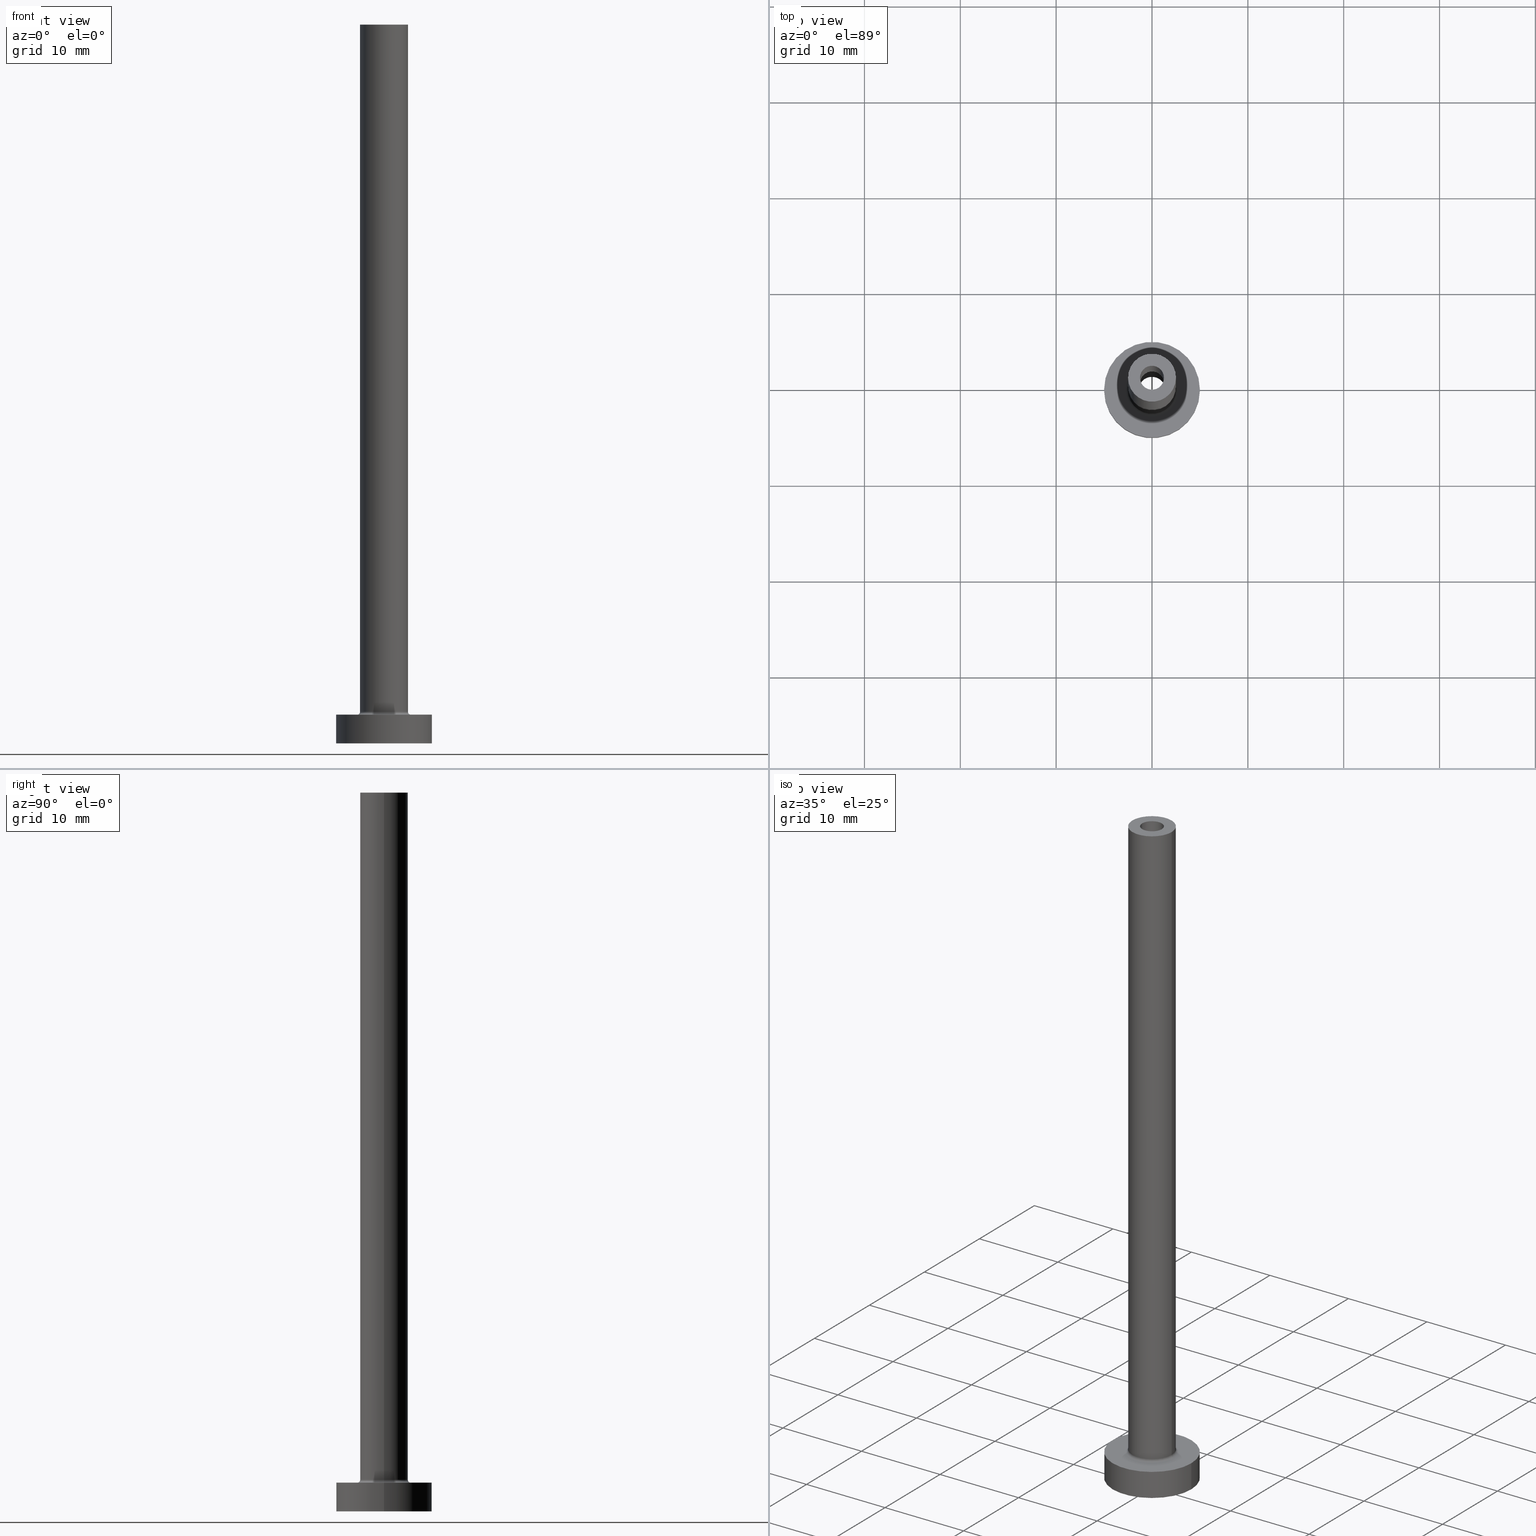
[diagram: canonical four-view strip — front | top / right | iso, engineering-drawing reading convention]
A machine part, canonical four-view strip (front | top / right | iso — engineering-drawing reading convention). The complete STEP part file that produces these views, byte-faithful:
ISO-10303-21;
HEADER;
FILE_DESCRIPTION (( 'STEP AP203' ),
    '1' );
FILE_NAME ('fc75.STEP',
    '2023-02-13T12:49:25',
    ( '' ),
    ( '' ),
    'SwSTEP 2.0',
    'SolidWorks 2019',
    '' );
FILE_SCHEMA (( 'CONFIG_CONTROL_DESIGN' ));
ENDSEC;

DATA;
#1 = VERTEX_POINT ( 'NONE', #406 ) ;
#2 = DIRECTION ( 'NONE',  ( 1.000000000000000000, 0.000000000000000000, 0.000000000000000000 ) ) ;
#3 = ORIENTED_EDGE ( 'NONE', *, *, #374, .T. ) ;
#4 = DATE_AND_TIME ( #183, #81 ) ;
#5 = PERSON_AND_ORGANIZATION ( #98, #35 ) ;
#6 = DATE_TIME_ROLE ( 'creation_date' ) ;
#7 = AXIS2_PLACEMENT_3D ( 'NONE', #273, #248, #170 ) ;
#8 = CIRCLE ( 'NONE', #69, 2.500000000000000000 ) ;
#9 = FACE_BOUND ( 'NONE', #258, .T. ) ;
#10 = DIRECTION ( 'NONE',  ( 0.000000000000000000, 0.000000000000000000, 1.000000000000000000 ) ) ;
#11 = DIRECTION ( 'NONE',  ( 1.000000000000000000, 0.000000000000000000, 0.000000000000000000 ) ) ;
#12 = LINE ( 'NONE', #42, #94 ) ;
#13 = PRODUCT_RELATED_PRODUCT_CATEGORY ( 'detail', '', ( #86 ) ) ;
#14 = CYLINDRICAL_SURFACE ( 'NONE', #196, 1.250000000000000000 ) ;
#15 =( GEOMETRIC_REPRESENTATION_CONTEXT ( 3 ) GLOBAL_UNCERTAINTY_ASSIGNED_CONTEXT ( ( #328 ) ) GLOBAL_UNIT_ASSIGNED_CONTEXT ( ( #339, #60, #208 ) ) REPRESENTATION_CONTEXT ( 'NONE', 'WORKASPACE' ) );
#16 = LINE ( 'NONE', #334, #386 ) ;
#17 = EDGE_CURVE ( 'NONE', #378, #149, #241, .T. ) ;
#18 = CARTESIAN_POINT ( 'NONE',  ( -5.000000000000000000, 0.000000000000000000, 3.000000000000000000 ) ) ;
#19 = CARTESIAN_POINT ( 'NONE',  ( 0.000000000000000000, 0.000000000000000000, 3.000000000000000000 ) ) ;
#20 = DIRECTION ( 'NONE',  ( -0.000000000000000000, -0.000000000000000000, -1.000000000000000000 ) ) ;
#21 = CARTESIAN_POINT ( 'NONE',  ( 0.000000000000000000, 0.000000000000000000, 75.00000000000001421 ) ) ;
#22 = AXIS2_PLACEMENT_3D ( 'NONE', #292, #404, #409 ) ;
#23 = DIRECTION ( 'NONE',  ( 1.000000000000000000, 0.000000000000000000, 0.000000000000000000 ) ) ;
#24 = DIRECTION ( 'NONE',  ( 1.000000000000000000, 0.000000000000000000, 0.000000000000000000 ) ) ;
#25 = EDGE_CURVE ( 'NONE', #261, #430, #199, .T. ) ;
#26 = CARTESIAN_POINT ( 'NONE',  ( 0.000000000000000000, 0.000000000000000000, 75.00000000000001421 ) ) ;
#27 = DIRECTION ( 'NONE',  ( -0.000000000000000000, -0.000000000000000000, -1.000000000000000000 ) ) ;
#28 = DIRECTION ( 'NONE',  ( 0.000000000000000000, 0.000000000000000000, -1.000000000000000000 ) ) ;
#29 = AXIS2_PLACEMENT_3D ( 'NONE', #198, #54, #201 ) ;
#30 = CC_DESIGN_PERSON_AND_ORGANIZATION_ASSIGNMENT ( #115, #395, ( #203 ) ) ;
#31 = DIRECTION ( 'NONE',  ( 1.000000000000000000, 0.000000000000000000, 0.000000000000000000 ) ) ;
#32 = EDGE_LOOP ( 'NONE', ( #114, #422, #271, #72 ) ) ;
#33 = ORIENTED_EDGE ( 'NONE', *, *, #257, .F. ) ;
#34 = ORIENTED_EDGE ( 'NONE', *, *, #236, .F. ) ;
#35 = ORGANIZATION ( 'NEUR�EN�', 'NEUR�EN�', '' ) ;
#36 = DIRECTION ( 'NONE',  ( -1.000000000000000000, 0.000000000000000000, 0.000000000000000000 ) ) ;
#37 = CALENDAR_DATE ( 2023, 13, 2 ) ;
#38 = AXIS2_PLACEMENT_3D ( 'NONE', #414, #449, #23 ) ;
#39 = DIRECTION ( 'NONE',  ( -1.000000000000000000, 0.000000000000000000, 0.000000000000000000 ) ) ;
#40 = EDGE_CURVE ( 'NONE', #310, #149, #376, .T. ) ;
#41 = ORIENTED_EDGE ( 'NONE', *, *, #298, .F. ) ;
#42 = CARTESIAN_POINT ( 'NONE',  ( 1.399999999999999911, 1.714505518806294391E-16, 43.95979797464467964 ) ) ;
#43 = DATE_AND_TIME ( #37, #371 ) ;
#44 = CC_DESIGN_PERSON_AND_ORGANIZATION_ASSIGNMENT ( #417, #135, ( #265 ) ) ;
#45 = ORIENTED_EDGE ( 'NONE', *, *, #367, .T. ) ;
#46 = CARTESIAN_POINT ( 'NONE',  ( 0.000000000000000000, 0.000000000000000000, 75.00000000000001421 ) ) ;
#47 = CARTESIAN_POINT ( 'NONE',  ( 0.000000000000000000, 0.000000000000000000, 75.00000000000001421 ) ) ;
#48 = DIRECTION ( 'NONE',  ( 1.000000000000000000, 0.000000000000000000, 0.000000000000000000 ) ) ;
#49 = DIRECTION ( 'NONE',  ( 0.000000000000000000, 0.000000000000000000, -1.000000000000000000 ) ) ;
#50 = DIRECTION ( 'NONE',  ( -1.000000000000000000, 0.000000000000000000, 0.000000000000000000 ) ) ;
#51 = AXIS2_PLACEMENT_3D ( 'NONE', #385, #141, #24 ) ;
#52 = AXIS2_PLACEMENT_3D ( 'NONE', #297, #444, #128 ) ;
#53 = AXIS2_PLACEMENT_3D ( 'NONE', #375, #280, #172 ) ;
#54 = DIRECTION ( 'NONE',  ( 0.000000000000000000, 0.000000000000000000, 1.000000000000000000 ) ) ;
#55 = ADVANCED_FACE ( 'NONE', ( #246 ), #240, .T. ) ;
#56 = DIRECTION ( 'NONE',  ( 1.000000000000000000, 0.000000000000000000, -0.000000000000000000 ) ) ;
#57 = PLANE ( 'NONE',  #29 ) ;
#58 = ORIENTED_EDGE ( 'NONE', *, *, #40, .F. ) ;
#59 = APPLICATION_PROTOCOL_DEFINITION ( 'international standard', 'config_control_design', 1994, #189 ) ;
#60 =( NAMED_UNIT ( * ) PLANE_ANGLE_UNIT ( ) SI_UNIT ( $, .RADIAN. ) );
#61 = ORIENTED_EDGE ( 'NONE', *, *, #245, .F. ) ;
#62 = CARTESIAN_POINT ( 'NONE',  ( 0.000000000000000000, 0.000000000000000000, 0.000000000000000000 ) ) ;
#63 = CARTESIAN_POINT ( 'NONE',  ( 1.399999999999999911, 1.714505518806294391E-16, 40.00000000000000711 ) ) ;
#64 = DIRECTION ( 'NONE',  ( 1.000000000000000000, 0.000000000000000000, 0.000000000000000000 ) ) ;
#65 = PERSON_AND_ORGANIZATION_ROLE ( 'design_supplier' ) ;
#66 = ADVANCED_FACE ( 'NONE', ( #324 ), #14, .F. ) ;
#67 = AXIS2_PLACEMENT_3D ( 'NONE', #186, #438, #31 ) ;
#68 = ORIENTED_EDGE ( 'NONE', *, *, #147, .T. ) ;
#69 = AXIS2_PLACEMENT_3D ( 'NONE', #90, #327, #11 ) ;
#70 = CARTESIAN_POINT ( 'NONE',  ( 0.000000000000000000, 0.000000000000000000, 3.299999999999997158 ) ) ;
#71 = COORDINATED_UNIVERSAL_TIME_OFFSET ( 1, 0, .AHEAD. ) ;
#72 = ORIENTED_EDGE ( 'NONE', *, *, #402, .T. ) ;
#73 = ORIENTED_EDGE ( 'NONE', *, *, #238, .F. ) ;
#74 = CYLINDRICAL_SURFACE ( 'NONE', #282, 2.500000000000000000 ) ;
#75 = ORIENTED_EDGE ( 'NONE', *, *, #420, .F. ) ;
#76 = DIRECTION ( 'NONE',  ( -1.000000000000000000, 0.000000000000000000, 0.000000000000000000 ) ) ;
#77 = DIRECTION ( 'NONE',  ( 1.000000000000000000, 0.000000000000000000, 0.000000000000000000 ) ) ;
#78 = VERTEX_POINT ( 'NONE', #424 ) ;
#79 = CIRCLE ( 'NONE', #7, 2.500000000000000000 ) ;
#80 = CALENDAR_DATE ( 2023, 13, 2 ) ;
#81 = LOCAL_TIME ( 13, 49, 25.00000000000000000, #112 ) ;
#82 = EDGE_LOOP ( 'NONE', ( #58, #41 ) ) ;
#83 = CARTESIAN_POINT ( 'NONE',  ( -2.799999999999999822, 3.429011037612589276E-16, 2.999999999999998668 ) ) ;
#84 = MANIFOLD_SOLID_BREP ( 'Odebrat vysunut�m4', #227 ) ;
#85 = DIRECTION ( 'NONE',  ( -0.000000000000000000, -0.000000000000000000, -1.000000000000000000 ) ) ;
#86 = PRODUCT ( 'fc75', 'fc75', '', ( #301 ) ) ;
#87 = EDGE_LOOP ( 'NONE', ( #286, #388, #383, #249 ) ) ;
#88 = CARTESIAN_POINT ( 'NONE',  ( -1.399999999999999911, 0.000000000000000000, 43.95979797464467964 ) ) ;
#89 = EDGE_LOOP ( 'NONE', ( #226, #340, #357, #111 ) ) ;
#90 = CARTESIAN_POINT ( 'NONE',  ( 0.000000000000000000, 0.000000000000000000, 3.299999999999997158 ) ) ;
#91 = CIRCLE ( 'NONE', #317, 2.500000000000000000 ) ;
#92 = CARTESIAN_POINT ( 'NONE',  ( -1.250000000000000000, 0.000000000000000000, 40.00000000000000711 ) ) ;
#93 = EDGE_CURVE ( 'NONE', #261, #107, #140, .T. ) ;
#94 = VECTOR ( 'NONE', #320, 1000.000000000000000 ) ;
#95 = PERSON_AND_ORGANIZATION ( #98, #35 ) ;
#96 = CIRCLE ( 'NONE', #160, 2.799999999999999822 ) ;
#97 = ORIENTED_EDGE ( 'NONE', *, *, #217, .F. ) ;
#98 = PERSON ( 'NEUR�EN�', 'NEUR�EN�', 'NEUR�EN�', ('NEUR�EN�'), ('NEUR�EN�'), ('NEUR�EN�') ) ;
#99 = EDGE_LOOP ( 'NONE', ( #274, #33 ) ) ;
#100 = AXIS2_PLACEMENT_3D ( 'NONE', #354, #358, #76 ) ;
#101 = CIRCLE ( 'NONE', #351, 1.250000000000000000 ) ;
#102 = PERSON_AND_ORGANIZATION ( #98, #35 ) ;
#103 = FACE_OUTER_BOUND ( 'NONE', #180, .T. ) ;
#104 = ORIENTED_EDGE ( 'NONE', *, *, #93, .F. ) ;
#105 = ORIENTED_EDGE ( 'NONE', *, *, #40, .T. ) ;
#106 = AXIS2_PLACEMENT_3D ( 'NONE', #47, #321, #191 ) ;
#107 = VERTEX_POINT ( 'NONE', #63 ) ;
#108 = DIRECTION ( 'NONE',  ( 0.000000000000000000, 0.000000000000000000, 1.000000000000000000 ) ) ;
#109 = VERTEX_POINT ( 'NONE', #214 ) ;
#110 = SHAPE_DEFINITION_REPRESENTATION ( #122, #400 ) ;
#111 = ORIENTED_EDGE ( 'NONE', *, *, #126, .T. ) ;
#112 = COORDINATED_UNIVERSAL_TIME_OFFSET ( 1, 0, .AHEAD. ) ;
#113 = EDGE_CURVE ( 'NONE', #440, #341, #91, .T. ) ;
#114 = ORIENTED_EDGE ( 'NONE', *, *, #332, .F. ) ;
#115 = PERSON_AND_ORGANIZATION ( #98, #35 ) ;
#116 = AXIS2_PLACEMENT_3D ( 'NONE', #19, #169, #416 ) ;
#117 = FACE_OUTER_BOUND ( 'NONE', #346, .T. ) ;
#118 = FACE_OUTER_BOUND ( 'NONE', #221, .T. ) ;
#119 = CC_DESIGN_APPROVAL ( #407, ( #265 ) ) ;
#120 = APPROVAL_STATUS ( 'not_yet_approved' ) ;
#121 = APPROVAL ( #333, 'NEUR�EN�' ) ;
#122 = PRODUCT_DEFINITION_SHAPE ( 'NONE', 'NONE',  #203 ) ;
#123 = FACE_BOUND ( 'NONE', #99, .T. ) ;
#124 = EDGE_LOOP ( 'NONE', ( #3, #312 ) ) ;
#125 = DIRECTION ( 'NONE',  ( 0.000000000000000000, 0.000000000000000000, -1.000000000000000000 ) ) ;
#126 = EDGE_CURVE ( 'NONE', #109, #345, #129, .T. ) ;
#127 = DIRECTION ( 'NONE',  ( 0.000000000000000000, 0.000000000000000000, 1.000000000000000000 ) ) ;
#128 = DIRECTION ( 'NONE',  ( 1.000000000000000000, 0.000000000000000000, 0.000000000000000000 ) ) ;
#129 = CIRCLE ( 'NONE', #187, 2.500000000000000000 ) ;
#130 = ORIENTED_EDGE ( 'NONE', *, *, #281, .F. ) ;
#131 = AXIS2_PLACEMENT_3D ( 'NONE', #363, #401, #39 ) ;
#132 = AXIS2_PLACEMENT_3D ( 'NONE', #162, #366, #295 ) ;
#133 = DIRECTION ( 'NONE',  ( 1.000000000000000000, 0.000000000000000000, 0.000000000000000000 ) ) ;
#134 = ADVANCED_FACE ( 'NONE', ( #288 ), #431, .T. ) ;
#135 = PERSON_AND_ORGANIZATION_ROLE ( 'creator' ) ;
#136 = CARTESIAN_POINT ( 'NONE',  ( -1.399999999999999911, 0.000000000000000000, 0.000000000000000000 ) ) ;
#137 = ORIENTED_EDGE ( 'NONE', *, *, #374, .F. ) ;
#138 = APPLICATION_PROTOCOL_DEFINITION ( 'international standard', 'config_control_design', 1994, #433 ) ;
#139 = LINE ( 'NONE', #243, #165 ) ;
#140 = CIRCLE ( 'NONE', #51, 1.399999999999999911 ) ;
#141 = DIRECTION ( 'NONE',  ( 0.000000000000000000, 0.000000000000000000, 1.000000000000000000 ) ) ;
#142 = ORIENTED_EDGE ( 'NONE', *, *, #25, .F. ) ;
#143 = CIRCLE ( 'NONE', #116, 2.799999999999999822 ) ;
#144 = DIRECTION ( 'NONE',  ( -1.000000000000000000, 0.000000000000000000, 0.000000000000000000 ) ) ;
#145 = LOCAL_TIME ( 13, 49, 25.00000000000000000, #234 ) ;
#146 = DIRECTION ( 'NONE',  ( 0.000000000000000000, 0.000000000000000000, 1.000000000000000000 ) ) ;
#147 = EDGE_CURVE ( 'NONE', #1, #277, #447, .T. ) ;
#148 = EDGE_LOOP ( 'NONE', ( #403, #75 ) ) ;
#149 = VERTEX_POINT ( 'NONE', #161 ) ;
#150 = APPROVAL_DATE_TIME ( #315, #335 ) ;
#151 = DIRECTION ( 'NONE',  ( -1.000000000000000000, 0.000000000000000000, 0.000000000000000000 ) ) ;
#152 = ORIENTED_EDGE ( 'NONE', *, *, #174, .F. ) ;
#153 = APPROVAL_ROLE ( '' ) ;
#154 = ADVANCED_FACE ( 'NONE', ( #9, #361 ), #244, .T. ) ;
#155 = ORIENTED_EDGE ( 'NONE', *, *, #236, .T. ) ;
#156 = APPROVAL_DATE_TIME ( #4, #121 ) ;
#157 = ADVANCED_FACE ( 'NONE', ( #123, #370 ), #57, .F. ) ;
#158 = EDGE_LOOP ( 'NONE', ( #34, #178, #166, #461 ) ) ;
#159 = CIRCLE ( 'NONE', #436, 5.000000000000000000 ) ;
#160 = AXIS2_PLACEMENT_3D ( 'NONE', #450, #412, #210 ) ;
#161 = CARTESIAN_POINT ( 'NONE',  ( 5.000000000000000000, 6.123233995736766282E-16, 0.000000000000000000 ) ) ;
#162 = CARTESIAN_POINT ( 'NONE',  ( -2.799999999999999822, 3.429011037612588783E-16, 3.299999999999997158 ) ) ;
#163 = CC_DESIGN_SECURITY_CLASSIFICATION ( #264, ( #265 ) ) ;
#164 = ADVANCED_FACE ( 'NONE', ( #205 ), #337, .F. ) ;
#165 = VECTOR ( 'NONE', #275, 1000.000000000000000 ) ;
#166 = ORIENTED_EDGE ( 'NONE', *, *, #303, .T. ) ;
#167 = LINE ( 'NONE', #18, #418 ) ;
#168 = DIRECTION ( 'NONE',  ( 0.000000000000000000, 0.000000000000000000, -1.000000000000000000 ) ) ;
#169 = DIRECTION ( 'NONE',  ( -0.000000000000000000, -0.000000000000000000, -1.000000000000000000 ) ) ;
#170 = DIRECTION ( 'NONE',  ( 1.000000000000000000, 0.000000000000000000, 0.000000000000000000 ) ) ;
#171 = CC_DESIGN_DATE_AND_TIME_ASSIGNMENT ( #230, #6, ( #203 ) ) ;
#172 = DIRECTION ( 'NONE',  ( 1.000000000000000000, 0.000000000000000000, 0.000000000000000000 ) ) ;
#173 = DIRECTION ( 'NONE',  ( 0.000000000000000000, 0.000000000000000000, 1.000000000000000000 ) ) ;
#174 = EDGE_CURVE ( 'NONE', #175, #316, #96, .T. ) ;
#175 = VERTEX_POINT ( 'NONE', #270 ) ;
#176 = VECTOR ( 'NONE', #85, 1000.000000000000000 ) ;
#177 = CIRCLE ( 'NONE', #52, 1.399999999999999911 ) ;
#178 = ORIENTED_EDGE ( 'NONE', *, *, #420, .T. ) ;
#179 = DATE_TIME_ROLE ( 'classification_date' ) ;
#180 = EDGE_LOOP ( 'NONE', ( #434, #432, #152, #130 ) ) ;
#181 = EDGE_CURVE ( 'NONE', #378, #457, #259, .T. ) ;
#182 = CC_DESIGN_PERSON_AND_ORGANIZATION_ASSIGNMENT ( #218, #349, ( #264 ) ) ;
#183 = CALENDAR_DATE ( 2023, 13, 2 ) ;
#184 = CIRCLE ( 'NONE', #441, 1.250000000000000000 ) ;
#185 = CARTESIAN_POINT ( 'NONE',  ( 2.500000000000000000, 3.061616997868383141E-16, 75.00000000000001421 ) ) ;
#186 = CARTESIAN_POINT ( 'NONE',  ( 0.000000000000000000, 0.000000000000000000, 3.299999999999997158 ) ) ;
#187 = AXIS2_PLACEMENT_3D ( 'NONE', #70, #453, #439 ) ;
#188 = TOROIDAL_SURFACE ( 'NONE', #67, 2.799999999999999822, 0.2999999999999999889 ) ;
#189 = APPLICATION_CONTEXT ( 'configuration controlled 3d designs of mechanical parts and assemblies' ) ;
#190 = DIRECTION ( 'NONE',  ( 0.000000000000000000, 0.000000000000000000, 1.000000000000000000 ) ) ;
#191 = DIRECTION ( 'NONE',  ( 1.000000000000000000, 0.000000000000000000, 0.000000000000000000 ) ) ;
#192 = CARTESIAN_POINT ( 'NONE',  ( 5.000000000000000000, 6.123233995736766282E-16, 3.000000000000000000 ) ) ;
#193 = DIRECTION ( 'NONE',  ( 0.000000000000000000, 0.000000000000000000, 1.000000000000000000 ) ) ;
#194 = EDGE_CURVE ( 'NONE', #345, #109, #8, .T. ) ;
#195 = FACE_BOUND ( 'NONE', #148, .T. ) ;
#196 = AXIS2_PLACEMENT_3D ( 'NONE', #442, #125, #306 ) ;
#197 = CARTESIAN_POINT ( 'NONE',  ( 2.799999999999999822, 0.000000000000000000, 3.299999999999997158 ) ) ;
#198 = CARTESIAN_POINT ( 'NONE',  ( 0.000000000000000000, 0.000000000000000000, 0.000000000000000000 ) ) ;
#199 = LINE ( 'NONE', #88, #207 ) ;
#200 = CIRCLE ( 'NONE', #369, 0.2999999999999999334 ) ;
#201 = DIRECTION ( 'NONE',  ( 1.000000000000000000, 0.000000000000000000, -0.000000000000000000 ) ) ;
#202 = DIRECTION ( 'NONE',  ( 1.000000000000000000, 0.000000000000000000, 0.000000000000000000 ) ) ;
#203 = PRODUCT_DEFINITION ( 'NEZN�M�', '', #265, #260 ) ;
#204 = CARTESIAN_POINT ( 'NONE',  ( 0.000000000000000000, 0.000000000000000000, 75.00000000000001421 ) ) ;
#205 = FACE_OUTER_BOUND ( 'NONE', #158, .T. ) ;
#206 = CARTESIAN_POINT ( 'NONE',  ( -1.250000000000000000, 0.000000000000000000, 75.00000000000001421 ) ) ;
#207 = VECTOR ( 'NONE', #410, 1000.000000000000000 ) ;
#208 =( NAMED_UNIT ( * ) SI_UNIT ( $, .STERADIAN. ) SOLID_ANGLE_UNIT ( ) );
#209 = DIRECTION ( 'NONE',  ( 1.000000000000000000, 0.000000000000000000, 0.000000000000000000 ) ) ;
#210 = DIRECTION ( 'NONE',  ( 1.000000000000000000, 0.000000000000000000, 0.000000000000000000 ) ) ;
#211 = DIRECTION ( 'NONE',  ( 0.000000000000000000, 0.000000000000000000, 1.000000000000000000 ) ) ;
#212 = ORIENTED_EDGE ( 'NONE', *, *, #298, .T. ) ;
#213 = PERSON_AND_ORGANIZATION ( #98, #35 ) ;
#214 = CARTESIAN_POINT ( 'NONE',  ( -2.500000000000000000, 0.000000000000000000, 3.299999999999997158 ) ) ;
#215 = CALENDAR_DATE ( 2023, 13, 2 ) ;
#216 = ORIENTED_EDGE ( 'NONE', *, *, #459, .F. ) ;
#217 = EDGE_CURVE ( 'NONE', #109, #316, #319, .T. ) ;
#218 = PERSON_AND_ORGANIZATION ( #98, #35 ) ;
#219 = VECTOR ( 'NONE', #49, 1000.000000000000000 ) ;
#220 = ORIENTED_EDGE ( 'NONE', *, *, #245, .T. ) ;
#221 = EDGE_LOOP ( 'NONE', ( #392, #284, #362, #142 ) ) ;
#222 = CARTESIAN_POINT ( 'NONE',  ( 5.000000000000000000, 6.123233995736766282E-16, 3.000000000000000000 ) ) ;
#223 = ORIENTED_EDGE ( 'NONE', *, *, #174, .T. ) ;
#224 = CC_DESIGN_PERSON_AND_ORGANIZATION_ASSIGNMENT ( #102, #65, ( #265 ) ) ;
#225 = CARTESIAN_POINT ( 'NONE',  ( 0.000000000000000000, 0.000000000000000000, 75.00000000000001421 ) ) ;
#226 = ORIENTED_EDGE ( 'NONE', *, *, #437, .F. ) ;
#227 = CLOSED_SHELL ( 'NONE', ( #66, #314, #390, #55, #290, #134, #154, #157, #382, #318, #344, #356, #399, #164 ) ) ;
#228 = DIRECTION ( 'NONE',  ( -0.000000000000000000, -0.000000000000000000, -1.000000000000000000 ) ) ;
#229 = ORIENTED_EDGE ( 'NONE', *, *, #446, .T. ) ;
#230 = DATE_AND_TIME ( #80, #145 ) ;
#231 = AXIS2_PLACEMENT_3D ( 'NONE', #62, #211, #202 ) ;
#232 = CYLINDRICAL_SURFACE ( 'NONE', #131, 1.399999999999999911 ) ;
#233 = ORIENTED_EDGE ( 'NONE', *, *, #303, .F. ) ;
#234 = COORDINATED_UNIVERSAL_TIME_OFFSET ( 1, 0, .AHEAD. ) ;
#235 = CARTESIAN_POINT ( 'NONE',  ( -5.000000000000000000, 0.000000000000000000, 0.000000000000000000 ) ) ;
#236 = EDGE_CURVE ( 'NONE', #277, #398, #16, .T. ) ;
#237 = PLANE ( 'NONE',  #384 ) ;
#238 = EDGE_CURVE ( 'NONE', #107, #261, #177, .T. ) ;
#239 = VERTEX_POINT ( 'NONE', #92 ) ;
#240 = CYLINDRICAL_SURFACE ( 'NONE', #242, 2.500000000000000000 ) ;
#241 = LINE ( 'NONE', #192, #268 ) ;
#242 = AXIS2_PLACEMENT_3D ( 'NONE', #373, #364, #50 ) ;
#243 = CARTESIAN_POINT ( 'NONE',  ( 2.500000000000000000, 3.061616997868383141E-16, 75.00000000000001421 ) ) ;
#244 = PLANE ( 'NONE',  #22 ) ;
#245 = EDGE_CURVE ( 'NONE', #316, #175, #143, .T. ) ;
#246 = FACE_OUTER_BOUND ( 'NONE', #87, .T. ) ;
#247 = DIRECTION ( 'NONE',  ( 0.000000000000000000, 0.000000000000000000, 1.000000000000000000 ) ) ;
#248 = DIRECTION ( 'NONE',  ( 0.000000000000000000, 0.000000000000000000, 1.000000000000000000 ) ) ;
#249 = ORIENTED_EDGE ( 'NONE', *, *, #308, .F. ) ;
#250 = APPROVAL_PERSON_ORGANIZATION ( #5, #335, #389 ) ;
#251 = CIRCLE ( 'NONE', #38, 1.399999999999999911 ) ;
#252 = ORIENTED_EDGE ( 'NONE', *, *, #17, .F. ) ;
#253 = CC_DESIGN_DATE_AND_TIME_ASSIGNMENT ( #43, #179, ( #264 ) ) ;
#254 = ORIENTED_EDGE ( 'NONE', *, *, #454, .T. ) ;
#255 = AXIS2_PLACEMENT_3D ( 'NONE', #262, #228, #36 ) ;
#256 = EDGE_LOOP ( 'NONE', ( #428, #254 ) ) ;
#257 = EDGE_CURVE ( 'NONE', #78, #430, #305, .T. ) ;
#258 = EDGE_LOOP ( 'NONE', ( #223, #220 ) ) ;
#259 = CIRCLE ( 'NONE', #278, 5.000000000000000000 ) ;
#260 = DESIGN_CONTEXT ( 'detailed design', #189, 'design' ) ;
#261 = VERTEX_POINT ( 'NONE', #365 ) ;
#262 = CARTESIAN_POINT ( 'NONE',  ( 0.000000000000000000, 0.000000000000000000, 3.000000000000000000 ) ) ;
#263 = ORIENTED_EDGE ( 'NONE', *, *, #181, .F. ) ;
#264 = SECURITY_CLASSIFICATION ( '', '', #380 ) ;
#265 = PRODUCT_DEFINITION_FORMATION_WITH_SPECIFIED_SOURCE ( 'LIBOVOLN�', '', #86, .NOT_KNOWN. ) ;
#266 = FACE_OUTER_BOUND ( 'NONE', #352, .T. ) ;
#267 = CARTESIAN_POINT ( 'NONE',  ( -2.500000000000000000, 0.000000000000000000, 75.00000000000001421 ) ) ;
#268 = VECTOR ( 'NONE', #368, 1000.000000000000000 ) ;
#269 = CARTESIAN_POINT ( 'NONE',  ( 1.250000000000000000, 1.530808498934191571E-16, 75.00000000000001421 ) ) ;
#270 = CARTESIAN_POINT ( 'NONE',  ( 2.799999999999999822, 0.000000000000000000, 2.999999999999998668 ) ) ;
#271 = ORIENTED_EDGE ( 'NONE', *, *, #25, .T. ) ;
#272 = CARTESIAN_POINT ( 'NONE',  ( 0.000000000000000000, 0.000000000000000000, 3.000000000000000000 ) ) ;
#273 = CARTESIAN_POINT ( 'NONE',  ( 0.000000000000000000, 0.000000000000000000, 75.00000000000001421 ) ) ;
#274 = ORIENTED_EDGE ( 'NONE', *, *, #402, .F. ) ;
#275 = DIRECTION ( 'NONE',  ( -0.000000000000000000, -0.000000000000000000, -1.000000000000000000 ) ) ;
#276 = CC_DESIGN_APPROVAL ( #335, ( #264 ) ) ;
#277 = VERTEX_POINT ( 'NONE', #269 ) ;
#278 = AXIS2_PLACEMENT_3D ( 'NONE', #272, #193, #48 ) ;
#279 = DIRECTION ( 'NONE',  ( 0.000000000000000000, 0.000000000000000000, 1.000000000000000000 ) ) ;
#280 = DIRECTION ( 'NONE',  ( 0.000000000000000000, 0.000000000000000000, 1.000000000000000000 ) ) ;
#281 = EDGE_CURVE ( 'NONE', #345, #175, #200, .T. ) ;
#282 = AXIS2_PLACEMENT_3D ( 'NONE', #225, #379, #144 ) ;
#283 = APPROVAL_DATE_TIME ( #377, #407 ) ;
#284 = ORIENTED_EDGE ( 'NONE', *, *, #332, .T. ) ;
#285 = CC_DESIGN_PERSON_AND_ORGANIZATION_ASSIGNMENT ( #95, #415, ( #86 ) ) ;
#286 = ORIENTED_EDGE ( 'NONE', *, *, #454, .F. ) ;
#287 = COORDINATED_UNIVERSAL_TIME_OFFSET ( 1, 0, .AHEAD. ) ;
#288 = FACE_OUTER_BOUND ( 'NONE', #348, .T. ) ;
#289 = ORIENTED_EDGE ( 'NONE', *, *, #446, .F. ) ;
#290 = ADVANCED_FACE ( 'NONE', ( #117 ), #393, .T. ) ;
#291 = PERSON_AND_ORGANIZATION ( #98, #35 ) ;
#292 = CARTESIAN_POINT ( 'NONE',  ( 0.000000000000000000, 0.000000000000000000, 3.000000000000000000 ) ) ;
#293 = CARTESIAN_POINT ( 'NONE',  ( 2.500000000000000000, 3.061616997868383141E-16, 3.299999999999997158 ) ) ;
#294 = LOCAL_TIME ( 13, 49, 25.00000000000000000, #71 ) ;
#295 = DIRECTION ( 'NONE',  ( -1.000000000000000000, 1.224646799147353207E-16, 0.000000000000000000 ) ) ;
#296 = AXIS2_PLACEMENT_3D ( 'NONE', #304, #279, #209 ) ;
#297 = CARTESIAN_POINT ( 'NONE',  ( 0.000000000000000000, 0.000000000000000000, 40.00000000000000711 ) ) ;
#298 = EDGE_CURVE ( 'NONE', #149, #310, #350, .T. ) ;
#299 = CARTESIAN_POINT ( 'NONE',  ( -5.000000000000000000, 0.000000000000000000, 3.000000000000000000 ) ) ;
#300 = DIRECTION ( 'NONE',  ( 0.000000000000000000, 0.000000000000000000, -1.000000000000000000 ) ) ;
#301 = MECHANICAL_CONTEXT ( 'NONE', #433, 'mechanical' ) ;
#302 = PLANE ( 'NONE',  #330 ) ;
#303 = EDGE_CURVE ( 'NONE', #1, #239, #452, .T. ) ;
#304 = CARTESIAN_POINT ( 'NONE',  ( 0.000000000000000000, 0.000000000000000000, 3.299999999999997158 ) ) ;
#305 = CIRCLE ( 'NONE', #435, 1.399999999999999911 ) ;
#306 = DIRECTION ( 'NONE',  ( -1.000000000000000000, 0.000000000000000000, 0.000000000000000000 ) ) ;
#307 = LOCAL_TIME ( 13, 49, 25.00000000000000000, #287 ) ;
#308 = EDGE_CURVE ( 'NONE', #440, #109, #405, .T. ) ;
#309 = EDGE_LOOP ( 'NONE', ( #68, #155, #216, #233 ) ) ;
#310 = VERTEX_POINT ( 'NONE', #235 ) ;
#311 = COORDINATED_UNIVERSAL_TIME_OFFSET ( 1, 0, .AHEAD. ) ;
#312 = ORIENTED_EDGE ( 'NONE', *, *, #181, .T. ) ;
#313 = DIRECTION ( 'NONE',  ( 0.000000000000000000, 0.000000000000000000, -1.000000000000000000 ) ) ;
#314 = ADVANCED_FACE ( 'NONE', ( #118 ), #232, .F. ) ;
#315 = DATE_AND_TIME ( #460, #294 ) ;
#316 = VERTEX_POINT ( 'NONE', #83 ) ;
#317 = AXIS2_PLACEMENT_3D ( 'NONE', #26, #146, #343 ) ;
#318 = ADVANCED_FACE ( 'NONE', ( #195, #360 ), #237, .T. ) ;
#319 = CIRCLE ( 'NONE', #132, 0.2999999999999999334 ) ;
#320 = DIRECTION ( 'NONE',  ( 0.000000000000000000, 0.000000000000000000, -1.000000000000000000 ) ) ;
#321 = DIRECTION ( 'NONE',  ( 0.000000000000000000, 0.000000000000000000, 1.000000000000000000 ) ) ;
#322 = CARTESIAN_POINT ( 'NONE',  ( 0.000000000000000000, 0.000000000000000000, 0.000000000000000000 ) ) ;
#323 = DIRECTION ( 'NONE',  ( -1.000000000000000000, 0.000000000000000000, 0.000000000000000000 ) ) ;
#324 = FACE_OUTER_BOUND ( 'NONE', #309, .T. ) ;
#325 = DIRECTION ( 'NONE',  ( 0.000000000000000000, -1.000000000000000000, 0.000000000000000000 ) ) ;
#326 = CIRCLE ( 'NONE', #53, 1.250000000000000000 ) ;
#327 = DIRECTION ( 'NONE',  ( 0.000000000000000000, 0.000000000000000000, 1.000000000000000000 ) ) ;
#328 = UNCERTAINTY_MEASURE_WITH_UNIT (LENGTH_MEASURE( 1.000000000000000082E-05 ), #339, 'distance_accuracy_value', 'NONE');
#329 = AXIS2_PLACEMENT_3D ( 'NONE', #21, #300, #323 ) ;
#330 = AXIS2_PLACEMENT_3D ( 'NONE', #445, #127, #56 ) ;
#331 = DIRECTION ( 'NONE',  ( 1.000000000000000000, 0.000000000000000000, 0.000000000000000000 ) ) ;
#332 = EDGE_CURVE ( 'NONE', #107, #78, #12, .T. ) ;
#333 = APPROVAL_STATUS ( 'not_yet_approved' ) ;
#334 = CARTESIAN_POINT ( 'NONE',  ( 1.250000000000000000, 1.530808498934191571E-16, 75.00000000000001421 ) ) ;
#335 = APPROVAL ( #353, 'NEUR�EN�' ) ;
#336 = DIRECTION ( 'NONE',  ( 0.000000000000000000, 0.000000000000000000, 1.000000000000000000 ) ) ;
#337 = CYLINDRICAL_SURFACE ( 'NONE', #329, 1.250000000000000000 ) ;
#338 = DIRECTION ( 'NONE',  ( 1.000000000000000000, 0.000000000000000000, 0.000000000000000000 ) ) ;
#339 =( LENGTH_UNIT ( ) NAMED_UNIT ( * ) SI_UNIT ( .MILLI., .METRE. ) );
#340 = ORIENTED_EDGE ( 'NONE', *, *, #113, .F. ) ;
#341 = VERTEX_POINT ( 'NONE', #185 ) ;
#342 = ORIENTED_EDGE ( 'NONE', *, *, #194, .F. ) ;
#343 = DIRECTION ( 'NONE',  ( 1.000000000000000000, 0.000000000000000000, 0.000000000000000000 ) ) ;
#344 = ADVANCED_FACE ( 'NONE', ( #266 ), #188, .F. ) ;
#345 = VERTEX_POINT ( 'NONE', #293 ) ;
#346 = EDGE_LOOP ( 'NONE', ( #263, #426, #212, #289 ) ) ;
#347 = CARTESIAN_POINT ( 'NONE',  ( 0.000000000000000000, 0.000000000000000000, 43.95979797464467964 ) ) ;
#348 = EDGE_LOOP ( 'NONE', ( #252, #137, #229, #105 ) ) ;
#349 = PERSON_AND_ORGANIZATION_ROLE ( 'classification_officer' ) ;
#350 = CIRCLE ( 'NONE', #231, 5.000000000000000000 ) ;
#351 = AXIS2_PLACEMENT_3D ( 'NONE', #204, #336, #133 ) ;
#352 = EDGE_LOOP ( 'NONE', ( #97, #342, #419, #61 ) ) ;
#353 = APPROVAL_STATUS ( 'not_yet_approved' ) ;
#354 = CARTESIAN_POINT ( 'NONE',  ( 0.000000000000000000, 0.000000000000000000, 3.000000000000000000 ) ) ;
#355 = DIRECTION ( 'NONE',  ( 1.000000000000000000, 0.000000000000000000, -0.000000000000000000 ) ) ;
#356 = ADVANCED_FACE ( 'NONE', ( #381 ), #429, .F. ) ;
#357 = ORIENTED_EDGE ( 'NONE', *, *, #308, .T. ) ;
#358 = DIRECTION ( 'NONE',  ( -0.000000000000000000, -0.000000000000000000, -1.000000000000000000 ) ) ;
#359 = APPROVAL_ROLE ( '' ) ;
#360 = FACE_OUTER_BOUND ( 'NONE', #256, .T. ) ;
#361 = FACE_OUTER_BOUND ( 'NONE', #124, .T. ) ;
#362 = ORIENTED_EDGE ( 'NONE', *, *, #257, .T. ) ;
#363 = CARTESIAN_POINT ( 'NONE',  ( 0.000000000000000000, 0.000000000000000000, 43.95979797464467964 ) ) ;
#364 = DIRECTION ( 'NONE',  ( -0.000000000000000000, -0.000000000000000000, -1.000000000000000000 ) ) ;
#365 = CARTESIAN_POINT ( 'NONE',  ( -1.399999999999999911, 0.000000000000000000, 40.00000000000000711 ) ) ;
#366 = DIRECTION ( 'NONE',  ( 1.224646799147353207E-16, 1.000000000000000000, -0.000000000000000000 ) ) ;
#367 = EDGE_CURVE ( 'NONE', #398, #239, #184, .T. ) ;
#368 = DIRECTION ( 'NONE',  ( -0.000000000000000000, -0.000000000000000000, -1.000000000000000000 ) ) ;
#369 = AXIS2_PLACEMENT_3D ( 'NONE', #197, #325, #28 ) ;
#370 = FACE_OUTER_BOUND ( 'NONE', #82, .T. ) ;
#371 = LOCAL_TIME ( 13, 49, 25.00000000000000000, #311 ) ;
#372 = CARTESIAN_POINT ( 'NONE',  ( 1.250000000000000000, 1.530808498934191571E-16, 40.00000000000000711 ) ) ;
#373 = CARTESIAN_POINT ( 'NONE',  ( 0.000000000000000000, 0.000000000000000000, 75.00000000000001421 ) ) ;
#374 = EDGE_CURVE ( 'NONE', #457, #378, #159, .T. ) ;
#375 = CARTESIAN_POINT ( 'NONE',  ( 0.000000000000000000, 0.000000000000000000, 40.00000000000000711 ) ) ;
#376 = CIRCLE ( 'NONE', #425, 5.000000000000000000 ) ;
#377 = DATE_AND_TIME ( #215, #307 ) ;
#378 = VERTEX_POINT ( 'NONE', #222 ) ;
#379 = DIRECTION ( 'NONE',  ( -0.000000000000000000, -0.000000000000000000, -1.000000000000000000 ) ) ;
#380 = SECURITY_CLASSIFICATION_LEVEL ( 'unclassified' ) ;
#381 = FACE_OUTER_BOUND ( 'NONE', #32, .T. ) ;
#382 = ADVANCED_FACE ( 'NONE', ( #391 ), #74, .T. ) ;
#383 = ORIENTED_EDGE ( 'NONE', *, *, #194, .T. ) ;
#384 = AXIS2_PLACEMENT_3D ( 'NONE', #46, #190, #355 ) ;
#385 = CARTESIAN_POINT ( 'NONE',  ( 0.000000000000000000, 0.000000000000000000, 40.00000000000000711 ) ) ;
#386 = VECTOR ( 'NONE', #168, 1000.000000000000000 ) ;
#387 = CARTESIAN_POINT ( 'NONE',  ( 0.000000000000000000, 0.000000000000000000, 3.000000000000000000 ) ) ;
#388 = ORIENTED_EDGE ( 'NONE', *, *, #437, .T. ) ;
#389 = APPROVAL_ROLE ( '' ) ;
#390 = ADVANCED_FACE ( 'NONE', ( #103 ), #456, .F. ) ;
#391 = FACE_OUTER_BOUND ( 'NONE', #89, .T. ) ;
#392 = ORIENTED_EDGE ( 'NONE', *, *, #93, .T. ) ;
#393 = CYLINDRICAL_SURFACE ( 'NONE', #100, 5.000000000000000000 ) ;
#394 = EDGE_LOOP ( 'NONE', ( #458, #45 ) ) ;
#395 = PERSON_AND_ORGANIZATION_ROLE ( 'creator' ) ;
#396 = AXIS2_PLACEMENT_3D ( 'NONE', #413, #247, #338 ) ;
#397 = APPROVAL_PERSON_ORGANIZATION ( #291, #407, #359 ) ;
#398 = VERTEX_POINT ( 'NONE', #372 ) ;
#399 = ADVANCED_FACE ( 'NONE', ( #451, #443 ), #302, .F. ) ;
#400 = ADVANCED_BREP_SHAPE_REPRESENTATION ( 'fc75', ( #84, #396 ), #15 ) ;
#401 = DIRECTION ( 'NONE',  ( 0.000000000000000000, 0.000000000000000000, -1.000000000000000000 ) ) ;
#402 = EDGE_CURVE ( 'NONE', #430, #78, #251, .T. ) ;
#403 = ORIENTED_EDGE ( 'NONE', *, *, #147, .F. ) ;
#404 = DIRECTION ( 'NONE',  ( 0.000000000000000000, 0.000000000000000000, 1.000000000000000000 ) ) ;
#405 = LINE ( 'NONE', #267, #176 ) ;
#406 = CARTESIAN_POINT ( 'NONE',  ( -1.250000000000000000, 0.000000000000000000, 75.00000000000001421 ) ) ;
#407 = APPROVAL ( #120, 'NEUR�EN�' ) ;
#408 = APPROVAL_PERSON_ORGANIZATION ( #213, #121, #153 ) ;
#409 = DIRECTION ( 'NONE',  ( 1.000000000000000000, 0.000000000000000000, -0.000000000000000000 ) ) ;
#410 = DIRECTION ( 'NONE',  ( 0.000000000000000000, 0.000000000000000000, -1.000000000000000000 ) ) ;
#411 = CARTESIAN_POINT ( 'NONE',  ( -2.500000000000000000, 0.000000000000000000, 75.00000000000001421 ) ) ;
#412 = DIRECTION ( 'NONE',  ( -0.000000000000000000, -0.000000000000000000, -1.000000000000000000 ) ) ;
#413 = CARTESIAN_POINT ( 'NONE',  ( 0.000000000000000000, 0.000000000000000000, 0.000000000000000000 ) ) ;
#414 = CARTESIAN_POINT ( 'NONE',  ( 0.000000000000000000, 0.000000000000000000, 0.000000000000000000 ) ) ;
#415 = PERSON_AND_ORGANIZATION_ROLE ( 'design_owner' ) ;
#416 = DIRECTION ( 'NONE',  ( 1.000000000000000000, 0.000000000000000000, 0.000000000000000000 ) ) ;
#417 = PERSON_AND_ORGANIZATION ( #98, #35 ) ;
#418 = VECTOR ( 'NONE', #20, 1000.000000000000000 ) ;
#419 = ORIENTED_EDGE ( 'NONE', *, *, #281, .T. ) ;
#420 = EDGE_CURVE ( 'NONE', #277, #1, #101, .T. ) ;
#421 = CARTESIAN_POINT ( 'NONE',  ( 0.000000000000000000, 0.000000000000000000, 0.000000000000000000 ) ) ;
#422 = ORIENTED_EDGE ( 'NONE', *, *, #238, .T. ) ;
#423 = EDGE_LOOP ( 'NONE', ( #104, #73 ) ) ;
#424 = CARTESIAN_POINT ( 'NONE',  ( 1.399999999999999911, 1.714505518806294391E-16, 0.000000000000000000 ) ) ;
#425 = AXIS2_PLACEMENT_3D ( 'NONE', #322, #10, #331 ) ;
#426 = ORIENTED_EDGE ( 'NONE', *, *, #17, .T. ) ;
#427 = CARTESIAN_POINT ( 'NONE',  ( 0.000000000000000000, 0.000000000000000000, 40.00000000000000711 ) ) ;
#428 = ORIENTED_EDGE ( 'NONE', *, *, #113, .T. ) ;
#429 = CYLINDRICAL_SURFACE ( 'NONE', #448, 1.399999999999999911 ) ;
#430 = VERTEX_POINT ( 'NONE', #136 ) ;
#431 = CYLINDRICAL_SURFACE ( 'NONE', #255, 5.000000000000000000 ) ;
#432 = ORIENTED_EDGE ( 'NONE', *, *, #217, .T. ) ;
#433 = APPLICATION_CONTEXT ( 'configuration controlled 3d designs of mechanical parts and assemblies' ) ;
#434 = ORIENTED_EDGE ( 'NONE', *, *, #126, .F. ) ;
#435 = AXIS2_PLACEMENT_3D ( 'NONE', #421, #27, #77 ) ;
#436 = AXIS2_PLACEMENT_3D ( 'NONE', #387, #173, #64 ) ;
#437 = EDGE_CURVE ( 'NONE', #341, #345, #139, .T. ) ;
#438 = DIRECTION ( 'NONE',  ( 0.000000000000000000, 0.000000000000000000, 1.000000000000000000 ) ) ;
#439 = DIRECTION ( 'NONE',  ( 1.000000000000000000, 0.000000000000000000, 0.000000000000000000 ) ) ;
#440 = VERTEX_POINT ( 'NONE', #411 ) ;
#441 = AXIS2_PLACEMENT_3D ( 'NONE', #427, #108, #2 ) ;
#442 = CARTESIAN_POINT ( 'NONE',  ( 0.000000000000000000, 0.000000000000000000, 75.00000000000001421 ) ) ;
#443 = FACE_OUTER_BOUND ( 'NONE', #423, .T. ) ;
#444 = DIRECTION ( 'NONE',  ( 0.000000000000000000, 0.000000000000000000, 1.000000000000000000 ) ) ;
#445 = CARTESIAN_POINT ( 'NONE',  ( 0.000000000000000000, 0.000000000000000000, 40.00000000000000711 ) ) ;
#446 = EDGE_CURVE ( 'NONE', #457, #310, #167, .T. ) ;
#447 = CIRCLE ( 'NONE', #106, 1.250000000000000000 ) ;
#448 = AXIS2_PLACEMENT_3D ( 'NONE', #347, #313, #151 ) ;
#449 = DIRECTION ( 'NONE',  ( -0.000000000000000000, -0.000000000000000000, -1.000000000000000000 ) ) ;
#450 = CARTESIAN_POINT ( 'NONE',  ( 0.000000000000000000, 0.000000000000000000, 3.000000000000000000 ) ) ;
#451 = FACE_BOUND ( 'NONE', #394, .T. ) ;
#452 = LINE ( 'NONE', #206, #219 ) ;
#453 = DIRECTION ( 'NONE',  ( 0.000000000000000000, 0.000000000000000000, 1.000000000000000000 ) ) ;
#454 = EDGE_CURVE ( 'NONE', #341, #440, #79, .T. ) ;
#455 = CC_DESIGN_APPROVAL ( #121, ( #203 ) ) ;
#456 = TOROIDAL_SURFACE ( 'NONE', #296, 2.799999999999999822, 0.2999999999999999889 ) ;
#457 = VERTEX_POINT ( 'NONE', #299 ) ;
#458 = ORIENTED_EDGE ( 'NONE', *, *, #459, .T. ) ;
#459 = EDGE_CURVE ( 'NONE', #239, #398, #326, .T. ) ;
#460 = CALENDAR_DATE ( 2023, 13, 2 ) ;
#461 = ORIENTED_EDGE ( 'NONE', *, *, #367, .F. ) ;
ENDSEC;
END-ISO-10303-21;
